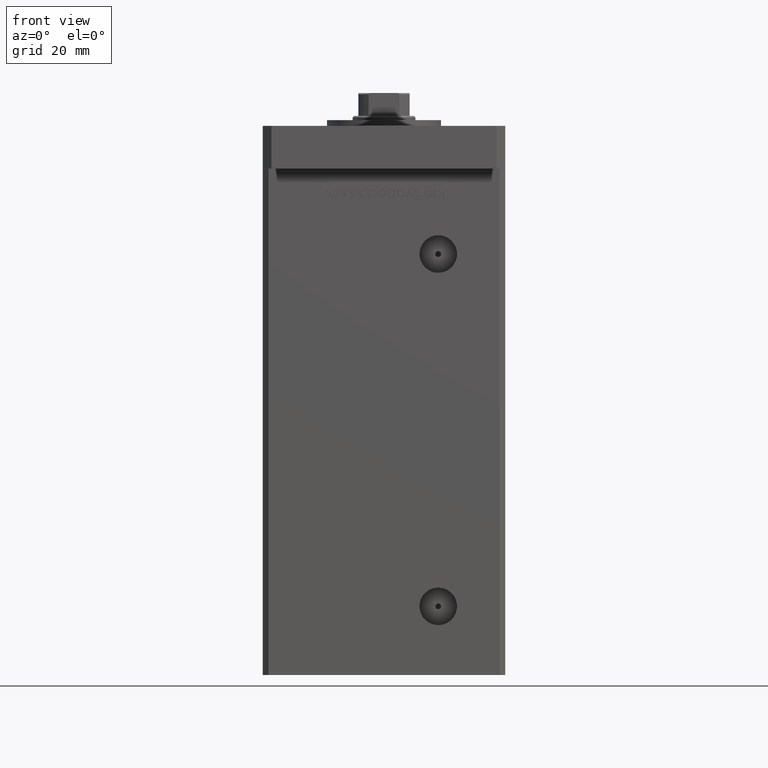
[diagram: clean part render]
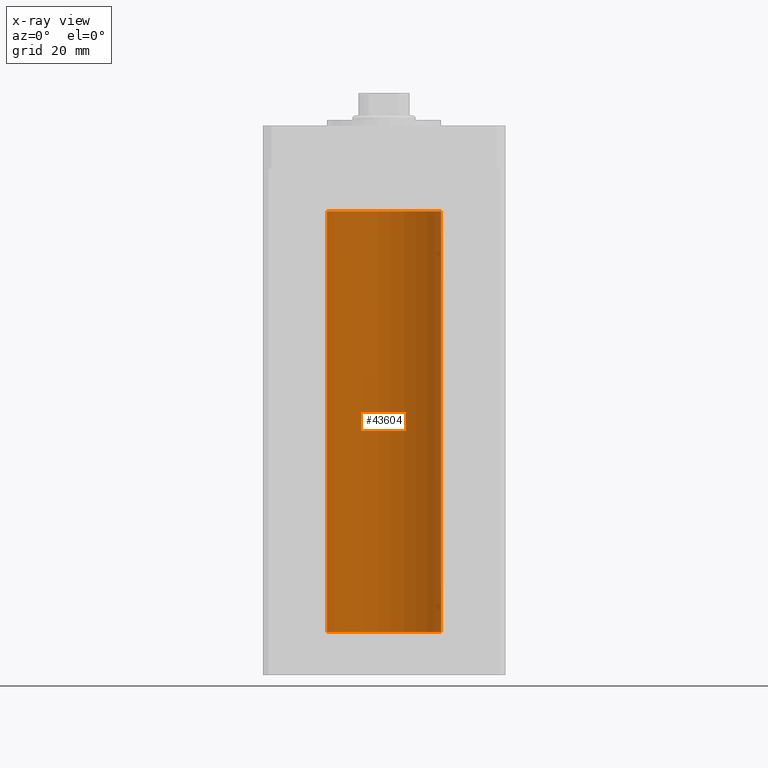
[diagram: x-ray — body ghosted, one internal face saturated and labeled with its STEP entity id]
A machine part, front view, then the same camera in x-ray: the body is ghosted and one INTERNAL B-rep face — a face not visible from any outside direction — is saturated and labeled: STEP entity #43604.
In plain terms, the highlighted cylindrical surface (partial cylindrical patch) has radius 20 mm, axis along (-0, -0, -1).
Its self-contained STEP definition (entity closure, byte-faithful):
#1282 = EDGE_CURVE ( 'NONE', #46756, #5699, #45577, .T. ) ;
#3297 = DIRECTION ( 'NONE',  ( -0.000000000000000000, 0.000000000000000000, 1.000000000000000000 ) ) ;
#5679 = DIRECTION ( 'NONE',  ( -0.000000000000000000, 0.000000000000000000, 1.000000000000000000 ) ) ;
#5699 = VERTEX_POINT ( 'NONE', #34062 ) ;
#8687 = CARTESIAN_POINT ( 'NONE',  ( -20.00000000000000000, 0.000000000000000000, 147.5000000000000000 ) ) ;
#9515 = DIRECTION ( 'NONE',  ( -0.000000000000000000, -0.000000000000000000, -1.000000000000000000 ) ) ;
#10305 = FACE_OUTER_BOUND ( 'NONE', #32532, .T. ) ;
#12769 = ORIENTED_EDGE ( 'NONE', *, *, #1282, .F. ) ;
#15245 = AXIS2_PLACEMENT_3D ( 'NONE', #35578, #3297, #19311 ) ;
#15305 = CARTESIAN_POINT ( 'NONE',  ( 20.00000000000000000, 2.449293598294706513E-15, 147.5000000000000000 ) ) ;
#15743 = AXIS2_PLACEMENT_3D ( 'NONE', #17370, #5679, #33891 ) ;
#16586 = CARTESIAN_POINT ( 'NONE',  ( 20.00000000000000000, 2.449293598294706513E-15, 147.5000000000000000 ) ) ;
#17370 = CARTESIAN_POINT ( 'NONE',  ( 0.000000000000000000, 0.000000000000000000, 147.5000000000000000 ) ) ;
#18833 = DIRECTION ( 'NONE',  ( -0.000000000000000000, -0.000000000000000000, -1.000000000000000000 ) ) ;
#19311 = DIRECTION ( 'NONE',  ( 1.000000000000000000, 0.000000000000000000, 0.000000000000000000 ) ) ;
#20158 = EDGE_CURVE ( 'NONE', #24928, #31147, #26169, .T. ) ;
#21185 = DIRECTION ( 'NONE',  ( -0.000000000000000000, -0.000000000000000000, -1.000000000000000000 ) ) ;
#22265 = CARTESIAN_POINT ( 'NONE',  ( 0.000000000000000000, 0.000000000000000000, 147.5000000000000000 ) ) ;
#22700 = CARTESIAN_POINT ( 'NONE',  ( -20.00000000000000000, 0.000000000000000000, 147.5000000000000000 ) ) ;
#24928 = VERTEX_POINT ( 'NONE', #16586 ) ;
#26169 = CIRCLE ( 'NONE', #15743, 20.00000000000000000 ) ;
#27101 = EDGE_CURVE ( 'NONE', #31147, #5699, #45595, .T. ) ;
#28978 = VECTOR ( 'NONE', #21185, 1000.000000000000000 ) ;
#31147 = VERTEX_POINT ( 'NONE', #22700 ) ;
#31460 = ORIENTED_EDGE ( 'NONE', *, *, #27101, .T. ) ;
#32532 = EDGE_LOOP ( 'NONE', ( #36577, #41088, #31460, #12769 ) ) ;
#33891 = DIRECTION ( 'NONE',  ( 1.000000000000000000, 0.000000000000000000, 0.000000000000000000 ) ) ;
#34062 = CARTESIAN_POINT ( 'NONE',  ( -20.00000000000000000, 0.000000000000000000, 0.000000000000000000 ) ) ;
#35578 = CARTESIAN_POINT ( 'NONE',  ( 0.000000000000000000, 0.000000000000000000, 0.000000000000000000 ) ) ;
#36571 = AXIS2_PLACEMENT_3D ( 'NONE', #22265, #9515, #43153 ) ;
#36577 = ORIENTED_EDGE ( 'NONE', *, *, #47737, .F. ) ;
#39066 = CYLINDRICAL_SURFACE ( 'NONE', #36571, 20.00000000000000000 ) ;
#41088 = ORIENTED_EDGE ( 'NONE', *, *, #20158, .T. ) ;
#43153 = DIRECTION ( 'NONE',  ( -1.000000000000000000, 0.000000000000000000, 0.000000000000000000 ) ) ;
#43604 = ADVANCED_FACE ( 'NONE', ( #10305 ), #39066, .F. ) ;
#44316 = LINE ( 'NONE', #15305, #52216 ) ;
#45577 = CIRCLE ( 'NONE', #15245, 20.00000000000000000 ) ;
#45595 = LINE ( 'NONE', #8687, #28978 ) ;
#46756 = VERTEX_POINT ( 'NONE', #49520 ) ;
#47737 = EDGE_CURVE ( 'NONE', #24928, #46756, #44316, .T. ) ;
#49520 = CARTESIAN_POINT ( 'NONE',  ( 20.00000000000000000, 2.449293598294706513E-15, 0.000000000000000000 ) ) ;
#52216 = VECTOR ( 'NONE', #18833, 1000.000000000000000 ) ;